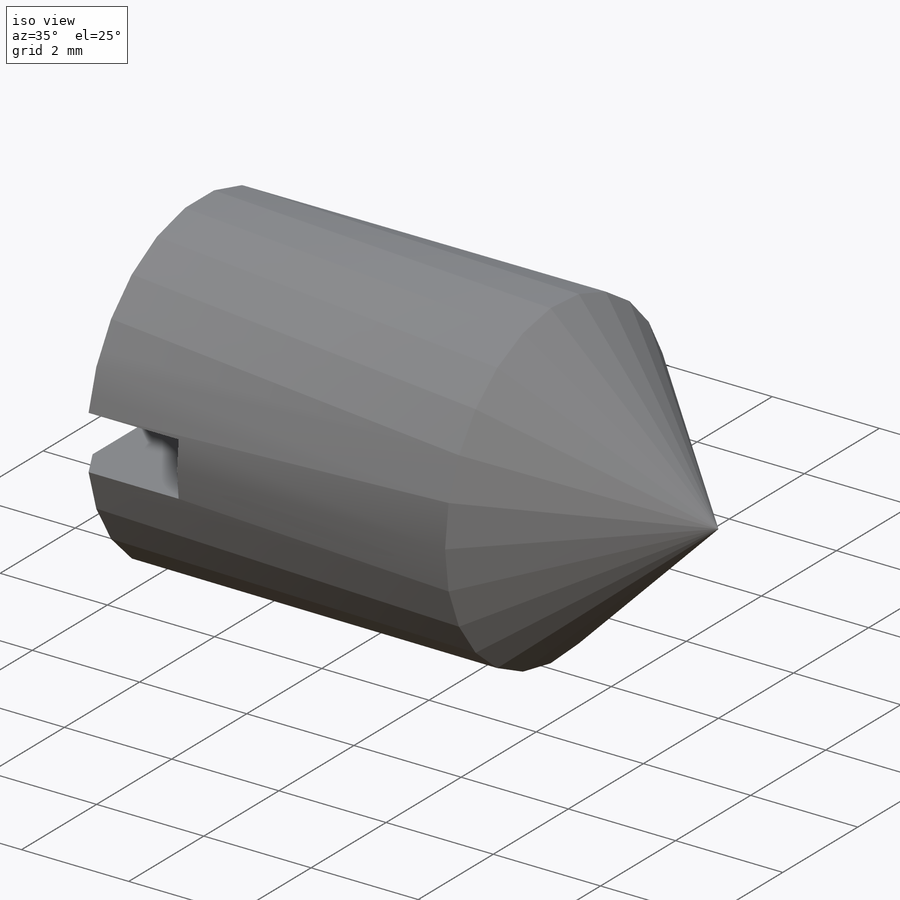
[diagram: iso view]
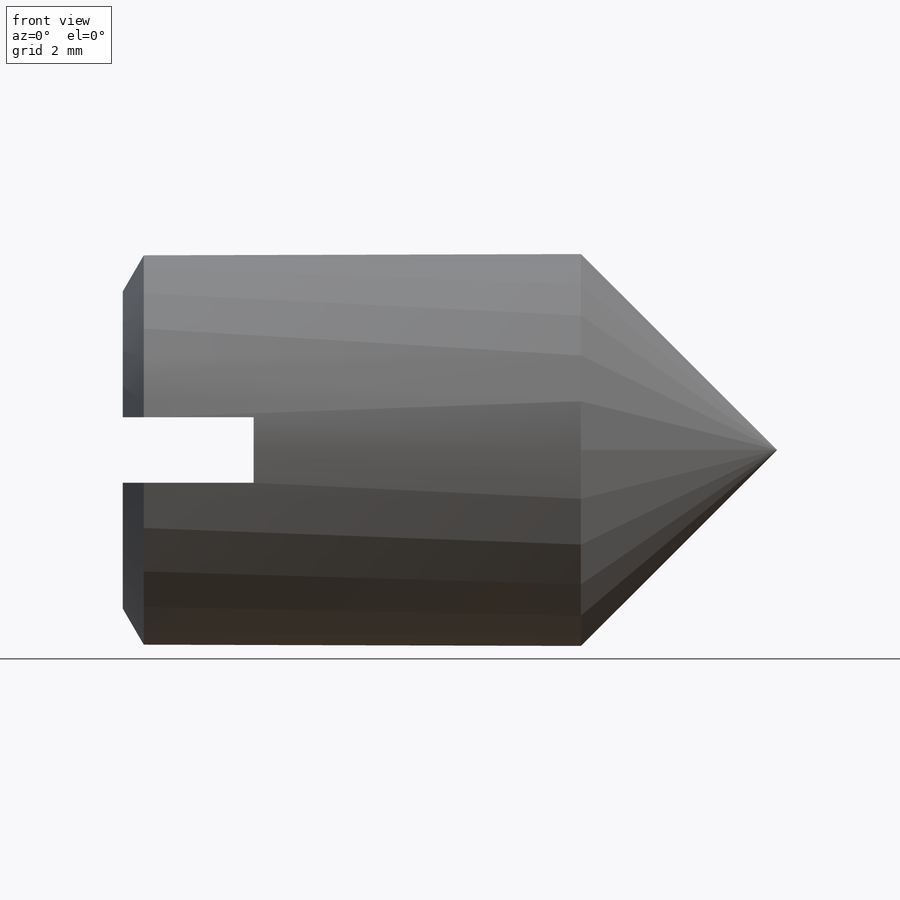
[diagram: front view]
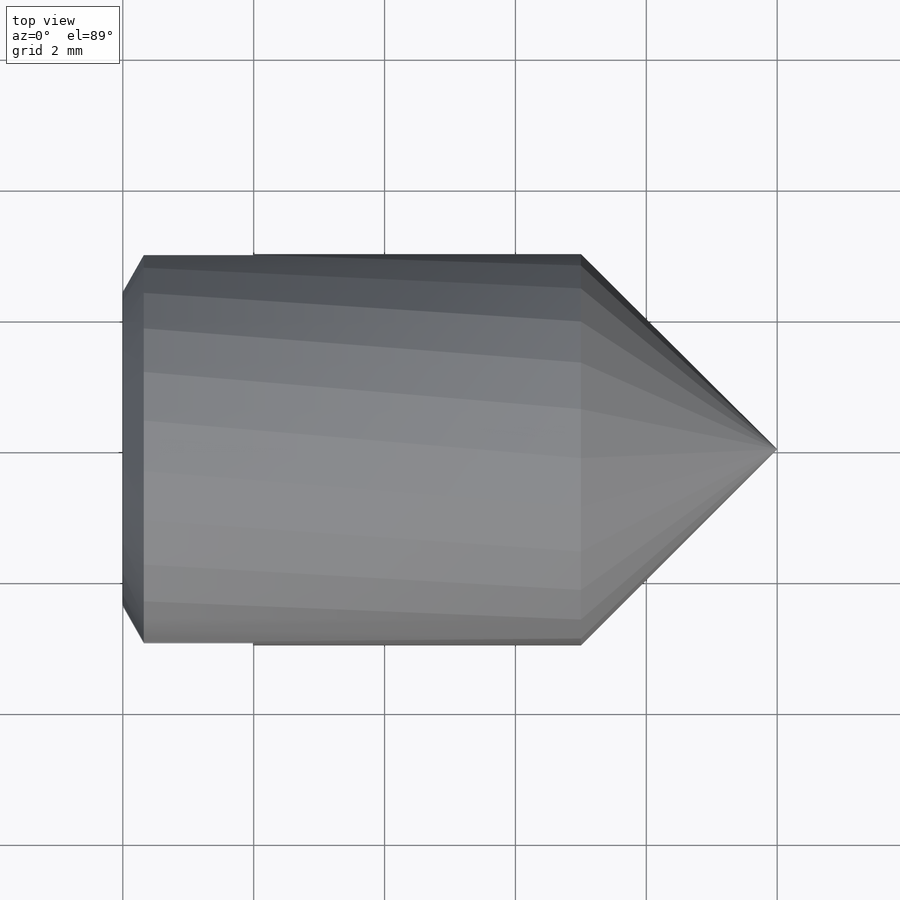
[diagram: top view]
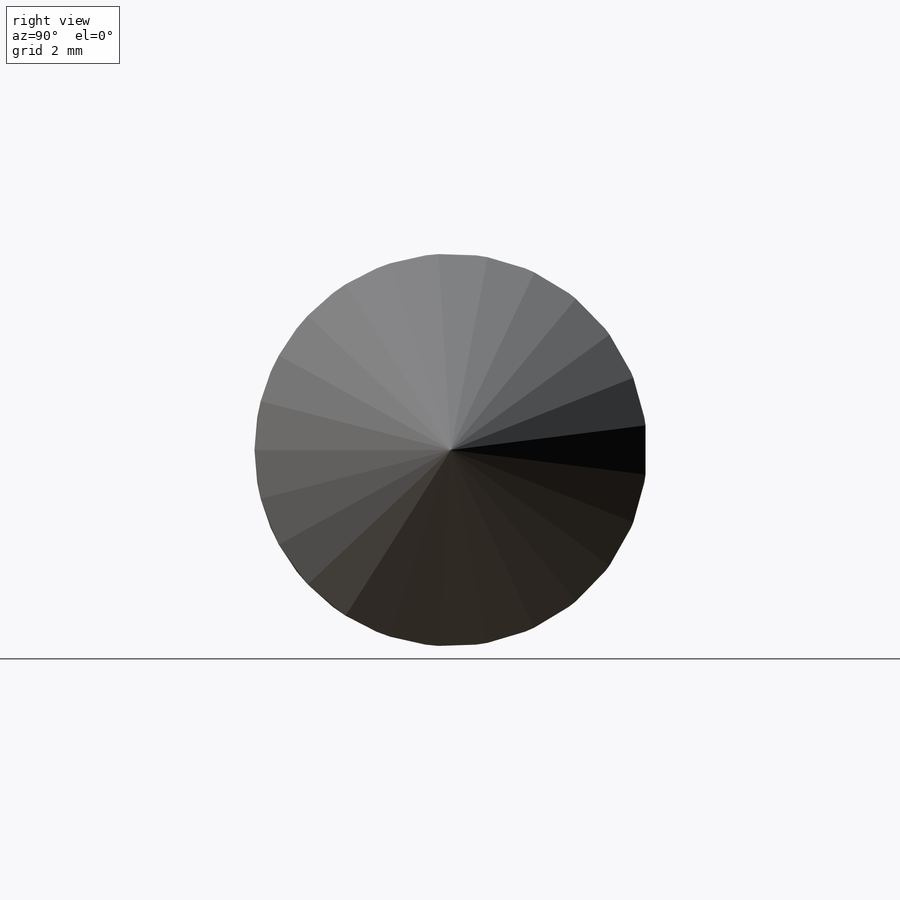
[diagram: right view]
SOLIDWORKS PART (.sldprt)
format: sldprt  version: not decoded by parser v0  size: 249,856 bytes
history: native  units: mm
features: plane x3, sketch x3, material x1, revolve x1, thread x1, cut_extrude x1, cut_revolve x1, pattern_linear x1 (+12 scaffold rows collapsed; 1 parser-record rows omitted)
feature tree (25):
  parser-record x1  (decoder bookkeeping rows leaked as tree rows — omitted from the tree; the rows remain in map.json)
  scaffold x12  (default folders/planes/origin — collapsed)
  material  "Material <not specified>"
  plane  "Plane1"
  plane  "Plane2"
  plane  "Plane3"
  sketch  "BodySke"  dims[c1.D1=~35.921024mm c2.D1=270.0deg c3.D1=~35.921024mm c3.Cone_ang=90.0deg c3.Length=50.0mm c3.Diameter=6.0mm c3.D4=~4.490128mm c3.Drive_ch_ang=60.0deg c3.Minor_dia=4.891mm c3.Advance=1.0mm c3.Head_ht=~1.88976mm c3.BodyLength=~36.21024mm c3.Flat_dia=6.0mm c4.Length=50.0mm c4.D1=15.0mm c4.Cone_ang=90.0deg c5.Length=10.0mm]
  revolve  "BaseBody"  [1 undecoded]
  thread  "ThreadCosmetic"  [2 undecoded]
  cut_extrude  "Slot"  [1 undecoded]
  sketch  "Sketch2"  dims[c1.Hex_size=12.0mm c1.D2=6.0mm c1.D3=6.0mm c1.Slot_width=1.0mm c1.D1=0.5mm c1.Slot_depth=2.0mm c1.Thread_minor=4.891mm c2.D1=360.0deg]
  sketch  "ThdSchSke"  dims[c1.Thread_minor=~1.03886mm c1.Diameter=~1.413535mm c1.Start=~0.988134mm c1.D4=~4.446753mm c1.Vee=60.0deg c2.Thread_minor=~1.03886mm c2.Start=~2.540025mm c2.D1=~0.108159mm c2.D2=~0.108159mm c3.D1=~0.216319mm c3.SideAngle=55.0deg c3.D2=~0.216319mm c3.VeeAngle=70.0deg c3.Thread_minor=4.891mm c3.Overcut=7.5mm c3.Diameter=6.0mm c3.D6=~8.326268mm c4.D1=~8.326268mm c5.D1=90.0deg c5.Start=63.5mm c6.Start=20.5486mm c7.Start=~1.88976mm]
  cut_revolve  "ThreadSchematic"  Angle=360deg
  pattern_linear  "ThdSchPat"  Count1=8 Count2=1 Spacing1=0.954266mm Spacing2=50mm Num_threads=8 Advance=0.954266mm ConfigurationName=0mm CopiedFlag=1 PartNumberID=0mm
decode coverage: 5 of 8 modeling features carry decoded parameters
note: ~ marks probable driven/reference dimensions
note: 4 parameter values undecoded
summary: no parameter record found for 3 features
note: suppression state not decoded; provenance and decode notes live in map.json
